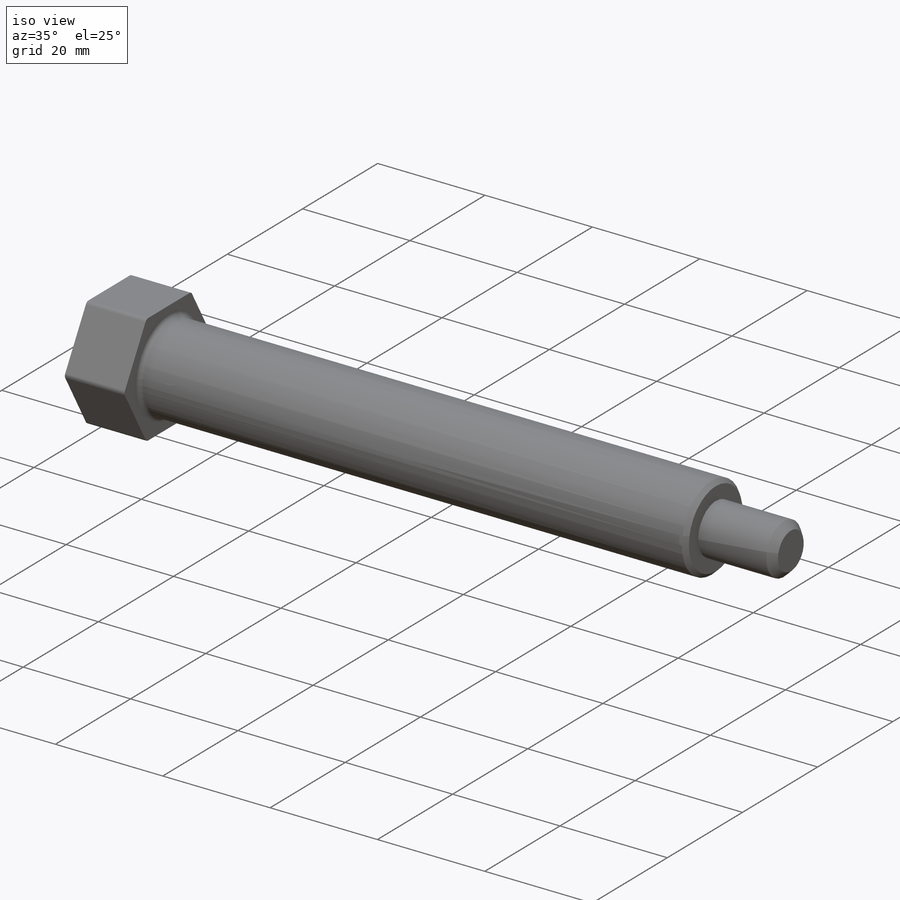
[diagram: iso view]
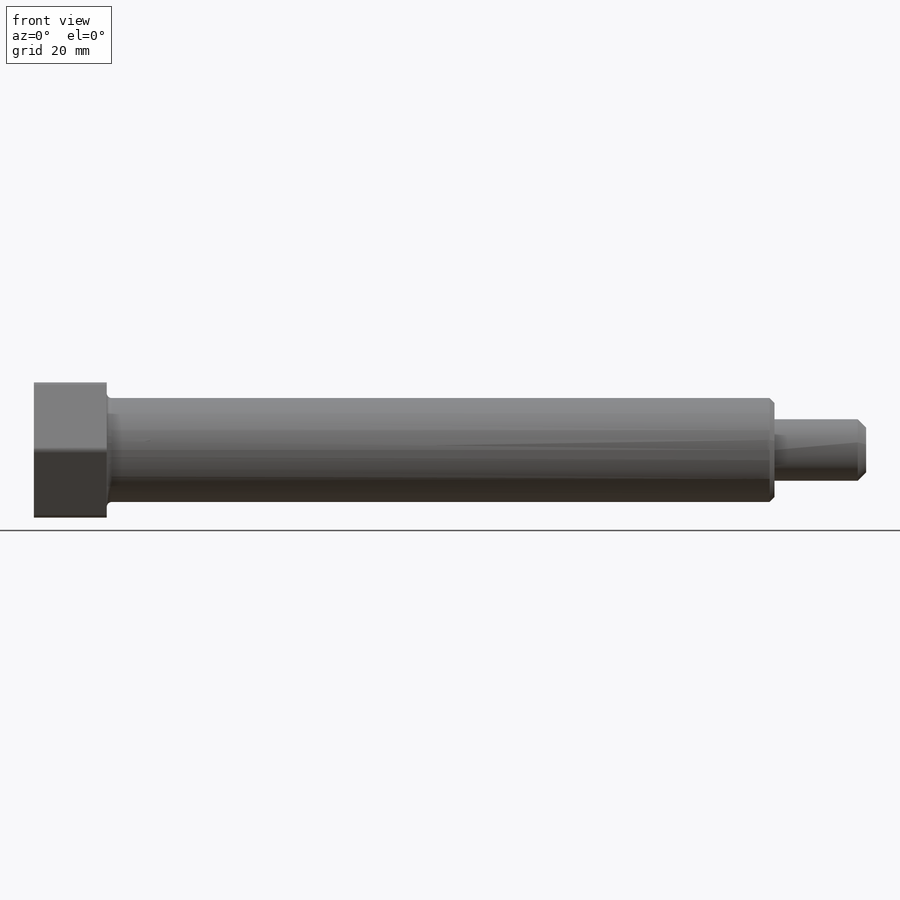
[diagram: front view]
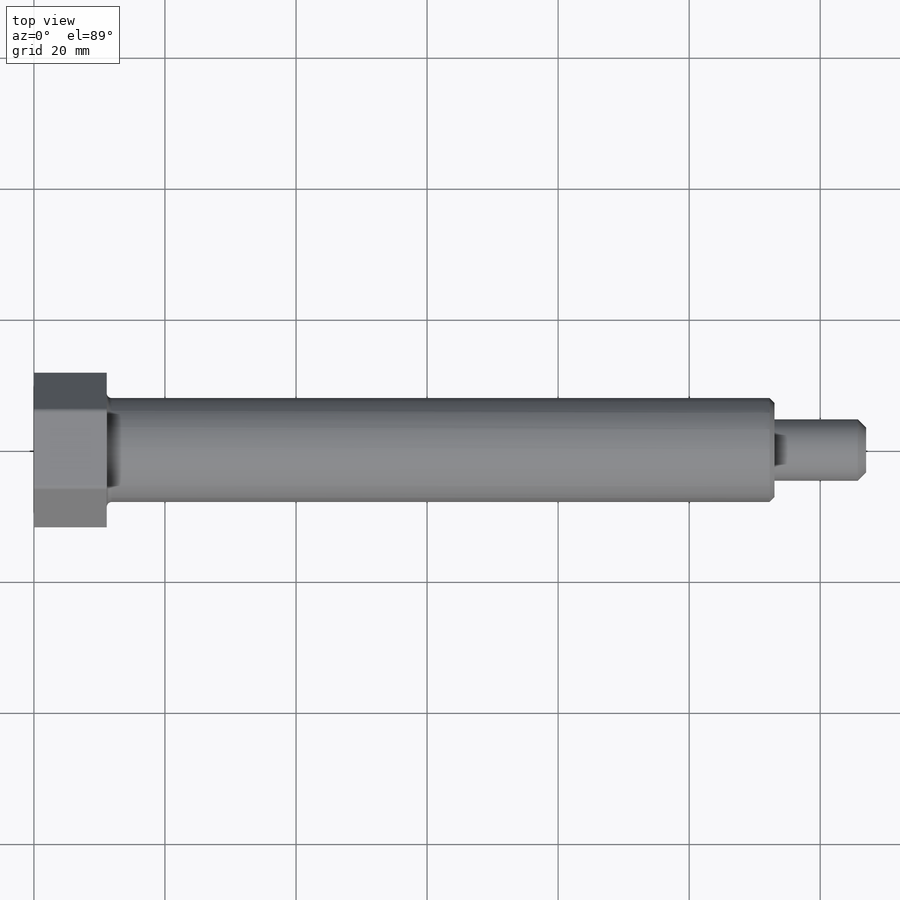
[diagram: top view]
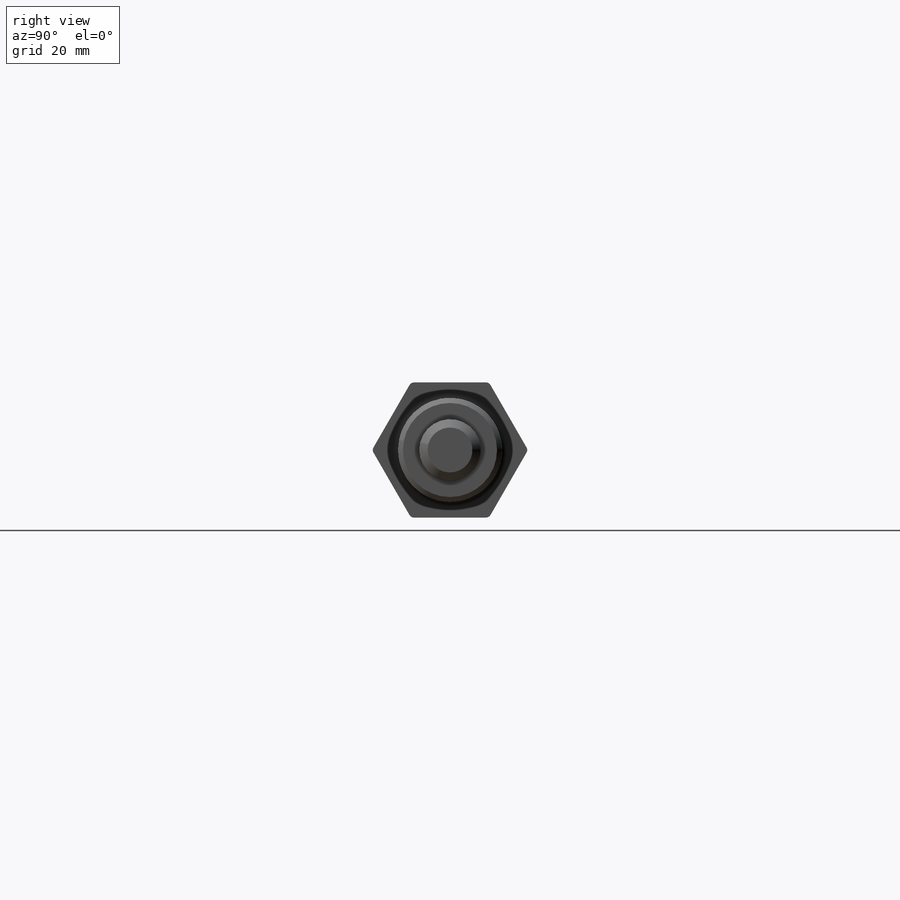
[diagram: right view]
SOLIDWORKS PART (.sldprt)
format: sldprt  version: not decoded by parser v0  size: 286,208 bytes
history: native  units: mm
features: plane x3, sketch x2, chamfer x2, fillet x2, material x1, revolve x1, thread x1, extrude x1 (+11 scaffold rows collapsed)
feature tree (24):
  scaffold x11  (default folders/planes/origin — collapsed)
  material  "420 SSTL"
  plane  "XY"
  plane  "XZ"
  plane  "YZ"
  sketch  "Sketch1"  dims[c1.D1=127.0mm c1.D2=13.97mm c1.D3=9.398mm c1.D4=15.875mm c2.D1=127.0mm c2.D5=139.7mm]
  revolve  "Revolve1"  [1 undecoded]
  thread  "Cosmetic Thread1"  Diameter=95.25mm  [1 undecoded]
  chamfer  "Chamfer1"  Distance=1.27mm Angle=45deg ID=-1
  sketch  "Sketch2"  dims[D2=11.5062mm D1=20.6248mm]
  extrude  "Extrude1"  Depth=11.1125mm
  fillet  "Fillet1"  Radius=0.762mm
  chamfer  "Chamfer2"  Distance=0.762mm Angle=45deg
  fillet  "Fillet2"  Radius=0.762mm
decode coverage: 8 of 9 modeling features carry decoded parameters
note: 2 parameter values undecoded
note: suppression state not decoded; provenance and decode notes live in map.json
